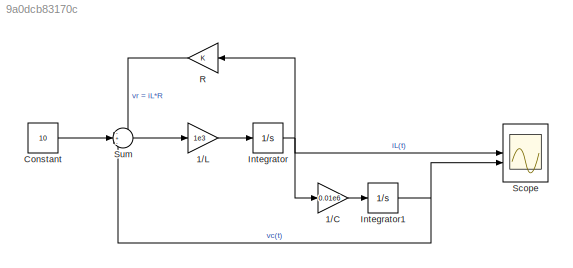
MODEL slx_9a0dcb83170c
KIND model
CONFIG AbsTol = auto
CONFIG EnableMultiTasking = off
CONFIG FixedStep = auto
CONFIG MaxStep = 10e-6
CONFIG MinStep = auto
CONFIG RelTol = 1e-3
CONFIG SampleTimeConstraint = Unconstrained
CONFIG SolverName = VariableStepAuto
CONFIG StartTime = 0.0
CONFIG StopTime = 0.02
BLOCK [Gain] 1//C
  Gain = 0.01e6
BLOCK [Gain] 1//L
  Gain = 1e3
BLOCK [Constant] Constant
  Value = 10
BLOCK [Integrator] Integrator
BLOCK [Integrator] Integrator1
BLOCK [Gain] R
BLOCK [Scope] Scope
  Floating = off
  NumInputPorts = 2
  ScopeSpecificationString = Simulink.scopes.TimeScopeBlockCfg('CurrentConfiguration', extmgr.ConfigurationSet(extmgr.Configuration('Core','General UI',true),extmgr.Configuration('Core','Source UI',true),extmgr.Configuration('Sources','WiredSimulink',true),extmgr.Configuration('Visuals','Time Domain',true,'SerializedDisplays',{struct('MinYLimReal','-3.72148','MaxYLimReal','18.24297','YLabelReal','','MinYLimMag','0.00000','Max...<+1480ch>
BLOCK [Sum] Sum
  Inputs = -+-
LINE 1//C:1 -> Integrator1:1
LINE 1//L:1 -> Integrator:1
LINE Constant:1 -> Sum:2
NET Integrator1:1 -> Scope:2, Sum:3
NET Integrator:1 -> 1//C:1, R:1, Scope:1
LINE R:1 -> Sum:1
LINE Sum:1 -> 1//L:1
note: NET lines group one-source signal fan-out (src -> all destinations, sorted); 1:1 wires keep LINE
